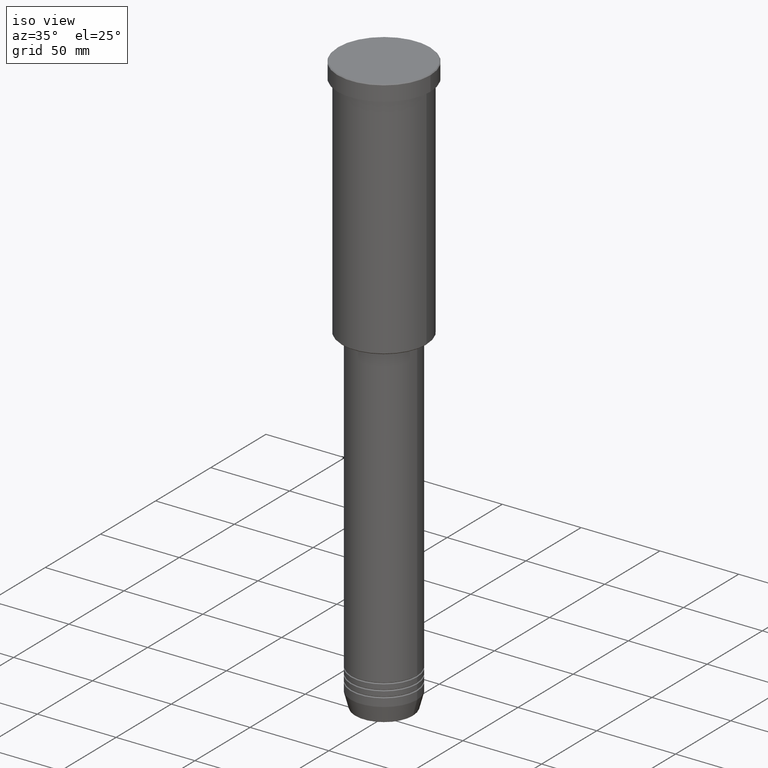
[diagram: clean part render]
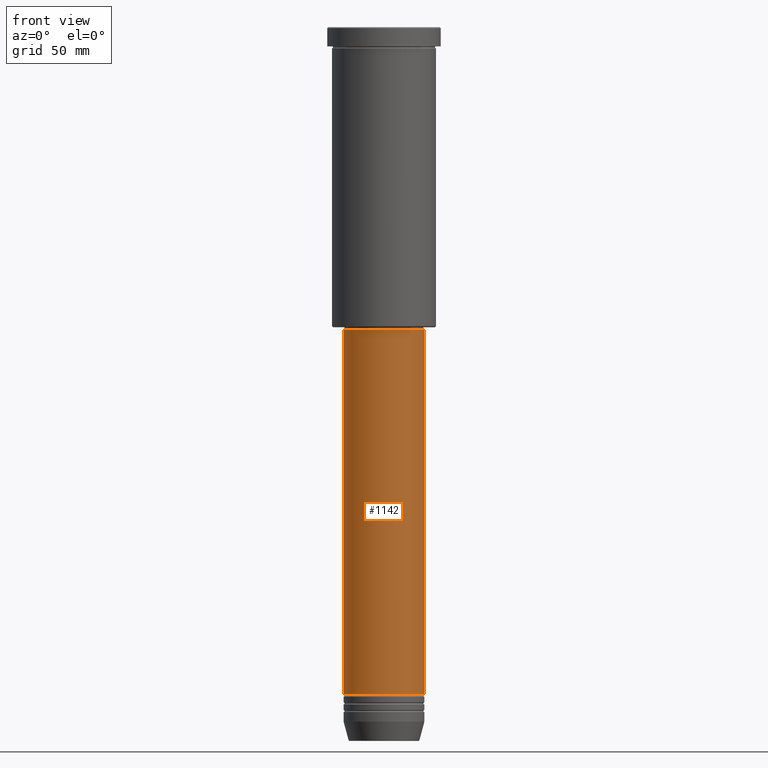
[diagram: tour spotlight — one face highlighted and labeled with its STEP entity id]
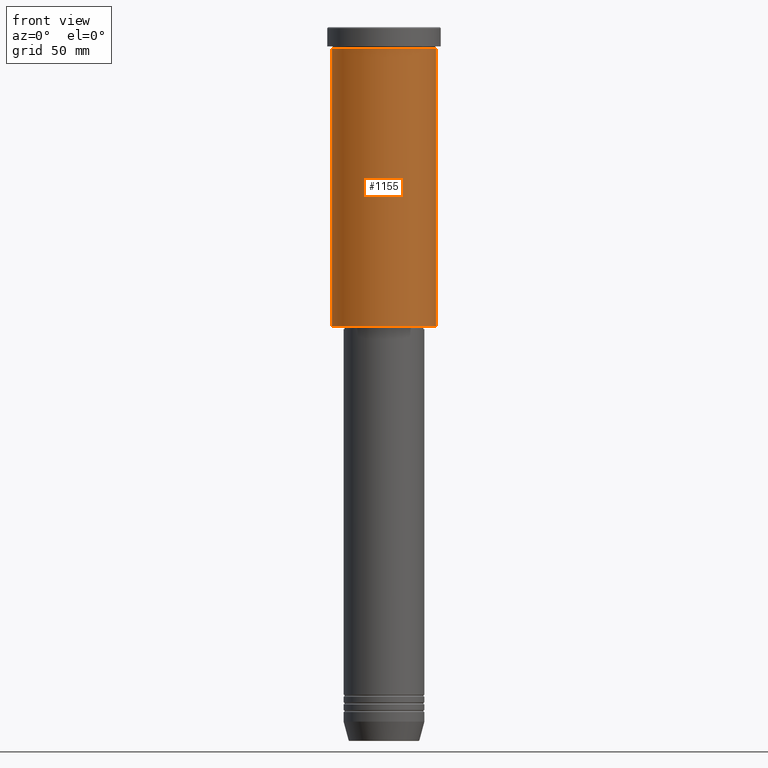
[diagram: tour spotlight — one face highlighted and labeled with its STEP entity id]
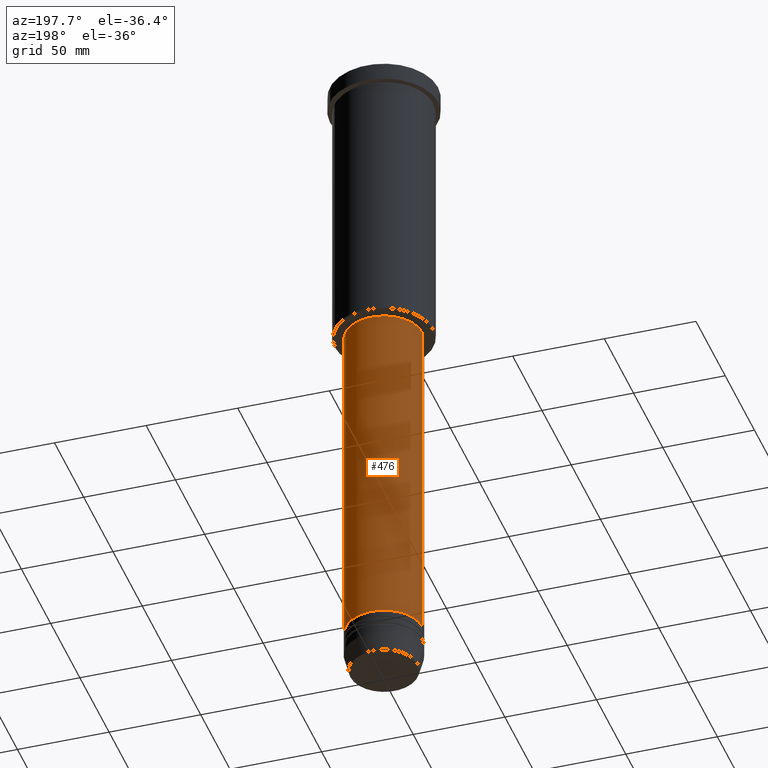
[diagram: tour spotlight — one face highlighted and labeled with its STEP entity id]
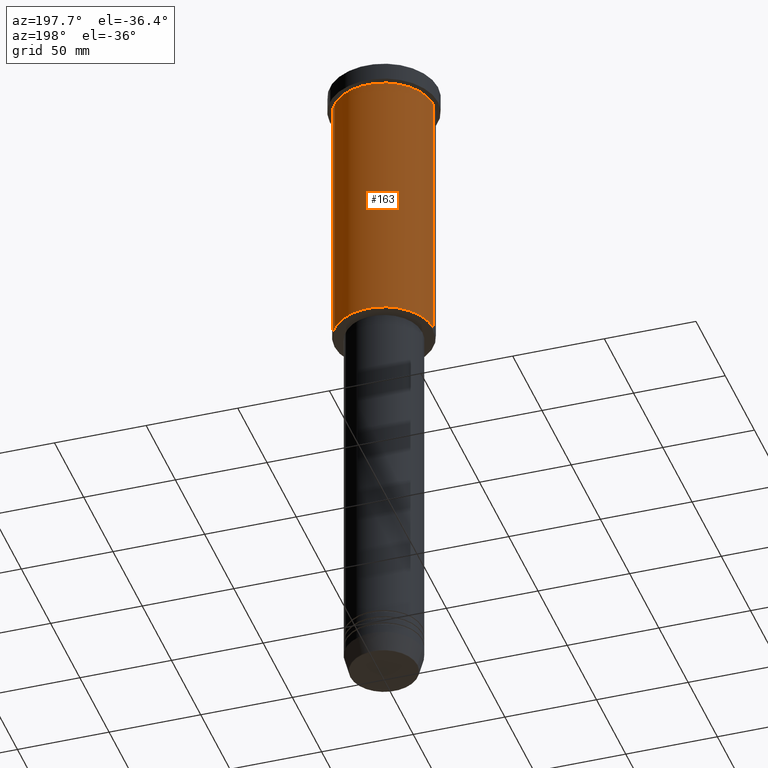
[diagram: tour spotlight — one face highlighted and labeled with its STEP entity id]
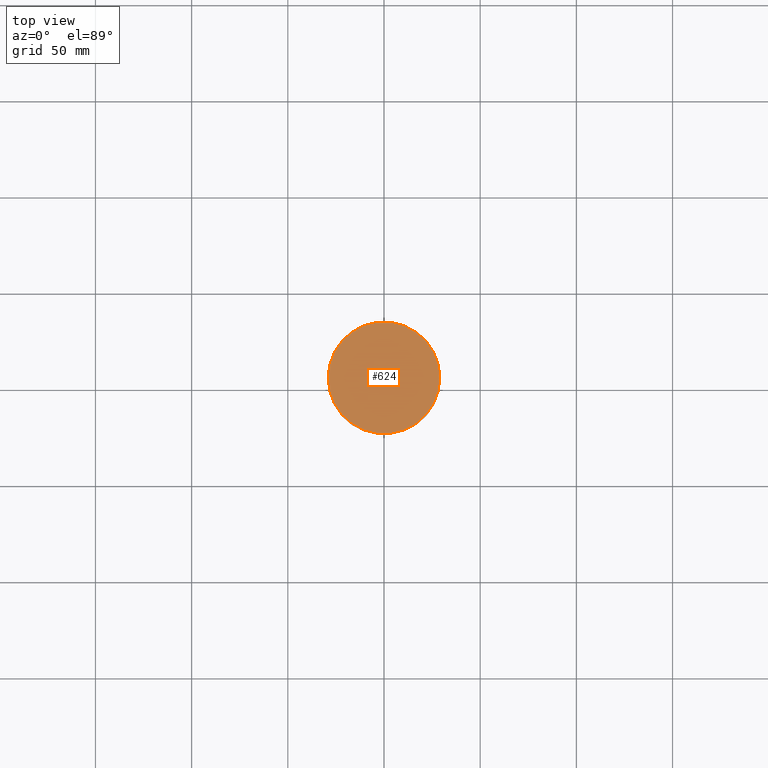
[diagram: tour spotlight — one face highlighted and labeled with its STEP entity id]
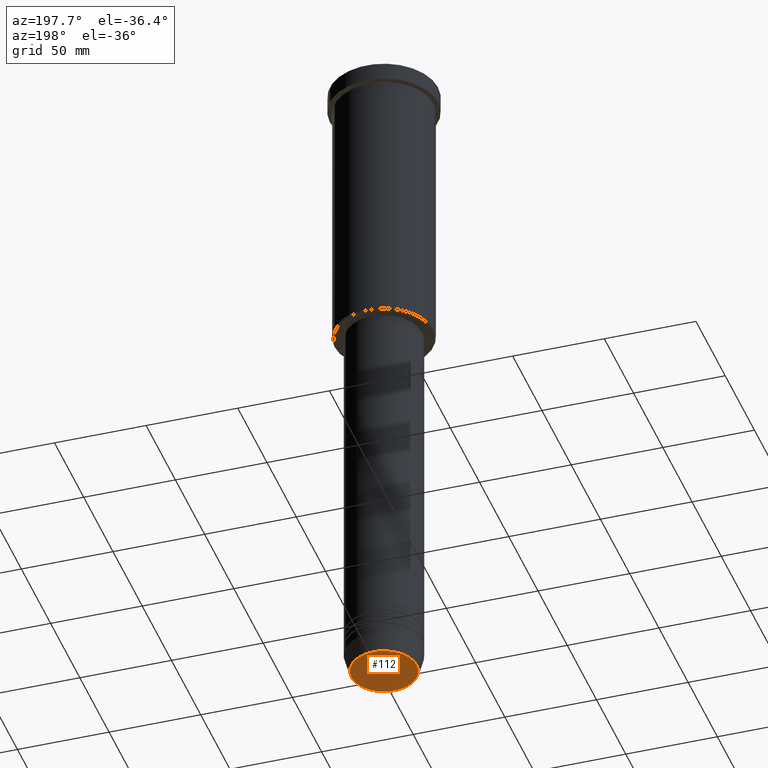
[diagram: tour spotlight — one face highlighted and labeled with its STEP entity id]
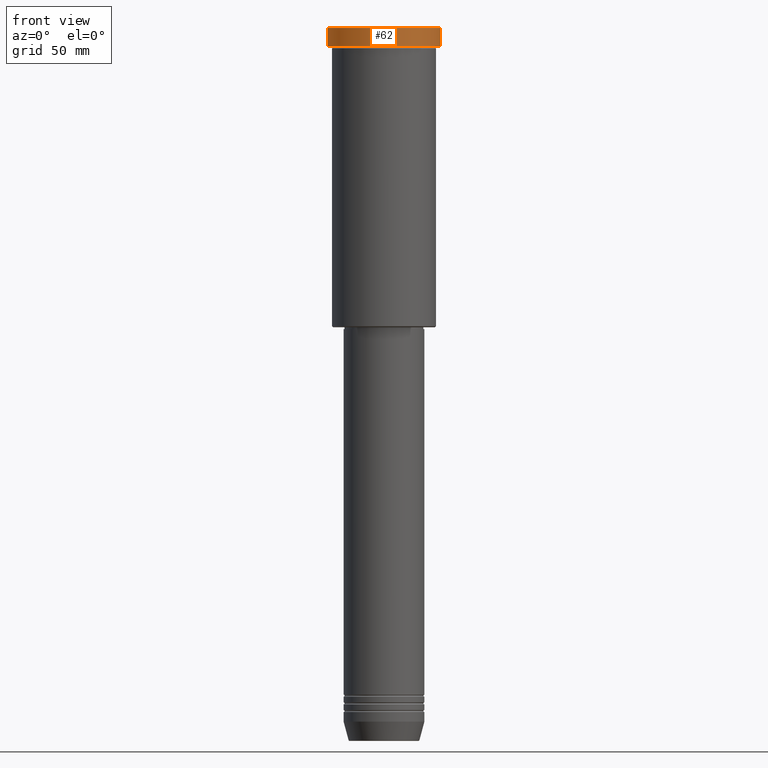
[diagram: tour spotlight — one face highlighted and labeled with its STEP entity id]
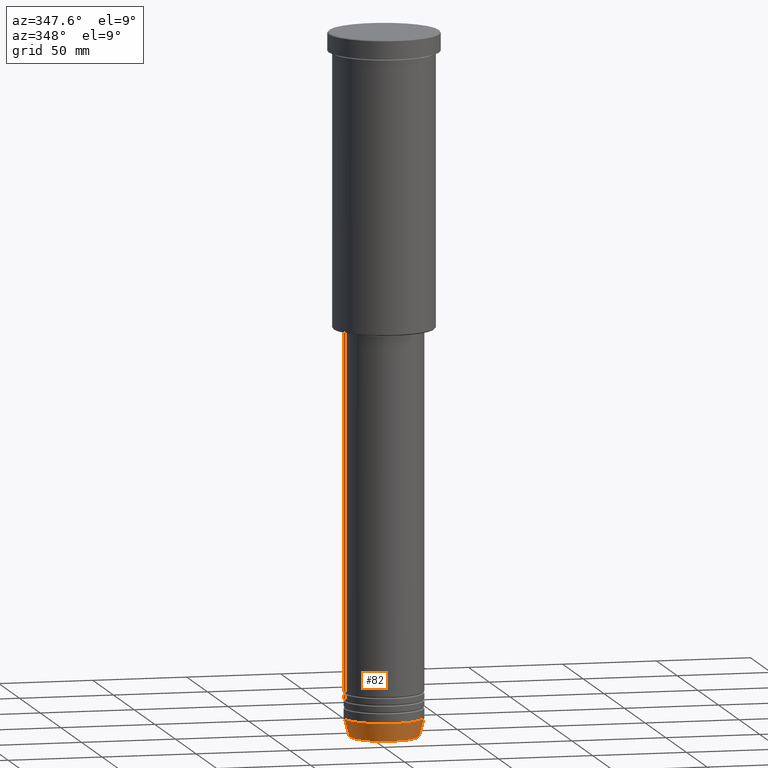
[diagram: tour spotlight — one face highlighted and labeled with its STEP entity id]
A machine part: a face-by-face anatomy tour. The part has 43 B-rep faces; the first image is the clean iso view, then the 8 largest visible faces are spotlighted one at a time (largest first), each with its STEP entity span.

Face 1 — front view, entity #1142. In plain terms, the highlighted cylindrical surface (partial cylindrical patch) has radius 21 mm, axis along (-0, -0, 1).
Definition (entity closure, byte-faithful):
#15 = DIRECTION ( 'NONE',  ( -0.000000000000000000, -0.000000000000000000, 1.000000000000000000 ) ) ;
#20 = CARTESIAN_POINT ( 'NONE',  ( -20.99999999999999645, 2.571758278209441267E-15, -156.9999999999999147 ) ) ;
#25 = CYLINDRICAL_SURFACE ( 'NONE', #558, 20.99999999999999645 ) ;
#57 = VERTEX_POINT ( 'NONE', #20 ) ;
#143 = CIRCLE ( 'NONE', #810, 20.99999999999999645 ) ;
#194 = DIRECTION ( 'NONE',  ( -0.000000000000000000, -0.000000000000000000, 1.000000000000000000 ) ) ;
#200 = DIRECTION ( 'NONE',  ( 1.000000000000000000, 0.000000000000000000, 0.000000000000000000 ) ) ;
#213 = DIRECTION ( 'NONE',  ( 1.000000000000000000, 0.000000000000000000, 0.000000000000000000 ) ) ;
#227 = CIRCLE ( 'NONE', #1119, 21.00000000000000000 ) ;
#255 = CARTESIAN_POINT ( 'NONE',  ( -20.99999999999999645, 2.571758278209441267E-15, 0.000000000000000000 ) ) ;
#291 = ORIENTED_EDGE ( 'NONE', *, *, #801, .T. ) ;
#301 = VECTOR ( 'NONE', #983, 1000.000000000000000 ) ;
#384 = EDGE_CURVE ( 'NONE', #1099, #57, #704, .T. ) ;
#468 = DIRECTION ( 'NONE',  ( 1.000000000000000000, 0.000000000000000000, 0.000000000000000000 ) ) ;
#481 = FACE_OUTER_BOUND ( 'NONE', #907, .T. ) ;
#525 = CARTESIAN_POINT ( 'NONE',  ( -21.00000000000000000, 2.571758278209441661E-15, -346.9999999999998863 ) ) ;
#549 = CARTESIAN_POINT ( 'NONE',  ( 20.99999999999999645, 0.000000000000000000, 0.000000000000000000 ) ) ;
#558 = AXIS2_PLACEMENT_3D ( 'NONE', #742, #194, #213 ) ;
#623 = ORIENTED_EDGE ( 'NONE', *, *, #1173, .T. ) ;
#648 = DIRECTION ( 'NONE',  ( -0.000000000000000000, -0.000000000000000000, 1.000000000000000000 ) ) ;
#672 = ORIENTED_EDGE ( 'NONE', *, *, #776, .F. ) ;
#704 = LINE ( 'NONE', #255, #301 ) ;
#742 = CARTESIAN_POINT ( 'NONE',  ( 0.000000000000000000, 0.000000000000000000, 0.000000000000000000 ) ) ;
#745 = LINE ( 'NONE', #549, #1156 ) ;
#776 = EDGE_CURVE ( 'NONE', #57, #867, #143, .T. ) ;
#801 = EDGE_CURVE ( 'NONE', #944, #867, #745, .T. ) ;
#810 = AXIS2_PLACEMENT_3D ( 'NONE', #1019, #648, #468 ) ;
#867 = VERTEX_POINT ( 'NONE', #955 ) ;
#893 = CARTESIAN_POINT ( 'NONE',  ( 21.00000000000000000, 0.000000000000000000, -346.9999999999998863 ) ) ;
#907 = EDGE_LOOP ( 'NONE', ( #986, #623, #291, #672 ) ) ;
#914 = DIRECTION ( 'NONE',  ( -0.000000000000000000, -0.000000000000000000, 1.000000000000000000 ) ) ;
#943 = CARTESIAN_POINT ( 'NONE',  ( 0.000000000000000000, 0.000000000000000000, -346.9999999999998863 ) ) ;
#944 = VERTEX_POINT ( 'NONE', #893 ) ;
#955 = CARTESIAN_POINT ( 'NONE',  ( 20.99999999999999645, 0.000000000000000000, -156.9999999999999147 ) ) ;
#983 = DIRECTION ( 'NONE',  ( -0.000000000000000000, -0.000000000000000000, 1.000000000000000000 ) ) ;
#986 = ORIENTED_EDGE ( 'NONE', *, *, #384, .F. ) ;
#1019 = CARTESIAN_POINT ( 'NONE',  ( 0.000000000000000000, 0.000000000000000000, -156.9999999999999147 ) ) ;
#1099 = VERTEX_POINT ( 'NONE', #525 ) ;
#1119 = AXIS2_PLACEMENT_3D ( 'NONE', #943, #15, #200 ) ;
#1142 = ADVANCED_FACE ( 'NONE', ( #481 ), #25, .T. ) ;
#1156 = VECTOR ( 'NONE', #914, 1000.000000000000000 ) ;
#1173 = EDGE_CURVE ( 'NONE', #1099, #944, #227, .T. ) ;

Face 2 — front view, entity #1155. In plain terms, the highlighted cylindrical surface (partial cylindrical patch) has radius 27 mm, axis along (-0, -0, 1).
Definition (entity closure, byte-faithful):
#36 = CARTESIAN_POINT ( 'NONE',  ( 0.000000000000000000, 0.000000000000000000, -10.99999999999999289 ) ) ;
#43 = CARTESIAN_POINT ( 'NONE',  ( -27.00000000000000355, 3.306546357697854128E-15, -10.99999999999999289 ) ) ;
#47 = DIRECTION ( 'NONE',  ( -0.000000000000000000, -0.000000000000000000, 1.000000000000000000 ) ) ;
#80 = VERTEX_POINT ( 'NONE', #469 ) ;
#89 = CIRCLE ( 'NONE', #182, 27.00000000000000355 ) ;
#106 = CARTESIAN_POINT ( 'NONE',  ( -27.00000000000000355, 3.306546357697854128E-15, -155.5000000000000000 ) ) ;
#110 = FACE_OUTER_BOUND ( 'NONE', #635, .T. ) ;
#165 = AXIS2_PLACEMENT_3D ( 'NONE', #1059, #1166, #723 ) ;
#182 = AXIS2_PLACEMENT_3D ( 'NONE', #36, #47, #402 ) ;
#189 = ORIENTED_EDGE ( 'NONE', *, *, #195, .T. ) ;
#195 = EDGE_CURVE ( 'NONE', #80, #455, #831, .T. ) ;
#270 = VERTEX_POINT ( 'NONE', #43 ) ;
#290 = CARTESIAN_POINT ( 'NONE',  ( 0.000000000000000000, 0.000000000000000000, 0.000000000000000000 ) ) ;
#296 = CYLINDRICAL_SURFACE ( 'NONE', #989, 27.00000000000000355 ) ;
#326 = DIRECTION ( 'NONE',  ( -0.000000000000000000, -0.000000000000000000, 1.000000000000000000 ) ) ;
#347 = EDGE_CURVE ( 'NONE', #270, #455, #89, .T. ) ;
#402 = DIRECTION ( 'NONE',  ( 1.000000000000000000, 0.000000000000000000, 0.000000000000000000 ) ) ;
#403 = DIRECTION ( 'NONE',  ( -0.000000000000000000, -0.000000000000000000, 1.000000000000000000 ) ) ;
#455 = VERTEX_POINT ( 'NONE', #686 ) ;
#469 = CARTESIAN_POINT ( 'NONE',  ( 27.00000000000000355, 0.000000000000000000, -155.5000000000000000 ) ) ;
#474 = DIRECTION ( 'NONE',  ( 1.000000000000000000, 0.000000000000000000, 0.000000000000000000 ) ) ;
#579 = EDGE_CURVE ( 'NONE', #815, #80, #790, .T. ) ;
#612 = CARTESIAN_POINT ( 'NONE',  ( -27.00000000000000355, 3.306546357697854128E-15, 0.000000000000000000 ) ) ;
#635 = EDGE_LOOP ( 'NONE', ( #990, #819, #189, #849 ) ) ;
#638 = VECTOR ( 'NONE', #805, 1000.000000000000000 ) ;
#686 = CARTESIAN_POINT ( 'NONE',  ( 27.00000000000000355, 0.000000000000000000, -10.99999999999999289 ) ) ;
#723 = DIRECTION ( 'NONE',  ( -1.000000000000000000, 0.000000000000000000, 0.000000000000000000 ) ) ;
#733 = VECTOR ( 'NONE', #326, 1000.000000000000000 ) ;
#790 = CIRCLE ( 'NONE', #165, 27.00000000000000355 ) ;
#794 = LINE ( 'NONE', #612, #638 ) ;
#805 = DIRECTION ( 'NONE',  ( -0.000000000000000000, -0.000000000000000000, 1.000000000000000000 ) ) ;
#815 = VERTEX_POINT ( 'NONE', #106 ) ;
#819 = ORIENTED_EDGE ( 'NONE', *, *, #579, .T. ) ;
#831 = LINE ( 'NONE', #862, #733 ) ;
#849 = ORIENTED_EDGE ( 'NONE', *, *, #347, .F. ) ;
#862 = CARTESIAN_POINT ( 'NONE',  ( 27.00000000000000355, 0.000000000000000000, 0.000000000000000000 ) ) ;
#989 = AXIS2_PLACEMENT_3D ( 'NONE', #290, #403, #474 ) ;
#990 = ORIENTED_EDGE ( 'NONE', *, *, #1017, .F. ) ;
#1017 = EDGE_CURVE ( 'NONE', #815, #270, #794, .T. ) ;
#1059 = CARTESIAN_POINT ( 'NONE',  ( 0.000000000000000000, 0.000000000000000000, -155.5000000000000000 ) ) ;
#1155 = ADVANCED_FACE ( 'NONE', ( #110 ), #296, .T. ) ;
#1166 = DIRECTION ( 'NONE',  ( -0.000000000000000000, -0.000000000000000000, 1.000000000000000000 ) ) ;

Face 3 — auxiliary view, entity #476. In plain terms, the highlighted cylindrical surface (partial cylindrical patch) has radius 21 mm, axis along (-0, -0, 1).
Definition (entity closure, byte-faithful):
#20 = CARTESIAN_POINT ( 'NONE',  ( -20.99999999999999645, 2.571758278209441267E-15, -156.9999999999999147 ) ) ;
#38 = EDGE_LOOP ( 'NONE', ( #45, #918, #441, #1069 ) ) ;
#45 = ORIENTED_EDGE ( 'NONE', *, *, #892, .T. ) ;
#46 = DIRECTION ( 'NONE',  ( -0.000000000000000000, -0.000000000000000000, 1.000000000000000000 ) ) ;
#57 = VERTEX_POINT ( 'NONE', #20 ) ;
#122 = CARTESIAN_POINT ( 'NONE',  ( 0.000000000000000000, 0.000000000000000000, -346.9999999999998863 ) ) ;
#205 = AXIS2_PLACEMENT_3D ( 'NONE', #760, #423, #219 ) ;
#219 = DIRECTION ( 'NONE',  ( 1.000000000000000000, 0.000000000000000000, 0.000000000000000000 ) ) ;
#255 = CARTESIAN_POINT ( 'NONE',  ( -20.99999999999999645, 2.571758278209441267E-15, 0.000000000000000000 ) ) ;
#301 = VECTOR ( 'NONE', #983, 1000.000000000000000 ) ;
#317 = CYLINDRICAL_SURFACE ( 'NONE', #205, 20.99999999999999645 ) ;
#384 = EDGE_CURVE ( 'NONE', #1099, #57, #704, .T. ) ;
#423 = DIRECTION ( 'NONE',  ( -0.000000000000000000, -0.000000000000000000, 1.000000000000000000 ) ) ;
#441 = ORIENTED_EDGE ( 'NONE', *, *, #798, .F. ) ;
#476 = ADVANCED_FACE ( 'NONE', ( #1125 ), #317, .T. ) ;
#478 = AXIS2_PLACEMENT_3D ( 'NONE', #1024, #929, #1013 ) ;
#525 = CARTESIAN_POINT ( 'NONE',  ( -21.00000000000000000, 2.571758278209441661E-15, -346.9999999999998863 ) ) ;
#549 = CARTESIAN_POINT ( 'NONE',  ( 20.99999999999999645, 0.000000000000000000, 0.000000000000000000 ) ) ;
#704 = LINE ( 'NONE', #255, #301 ) ;
#745 = LINE ( 'NONE', #549, #1156 ) ;
#760 = CARTESIAN_POINT ( 'NONE',  ( 0.000000000000000000, 0.000000000000000000, 0.000000000000000000 ) ) ;
#798 = EDGE_CURVE ( 'NONE', #867, #57, #1006, .T. ) ;
#801 = EDGE_CURVE ( 'NONE', #944, #867, #745, .T. ) ;
#867 = VERTEX_POINT ( 'NONE', #955 ) ;
#892 = EDGE_CURVE ( 'NONE', #944, #1099, #1179, .T. ) ;
#893 = CARTESIAN_POINT ( 'NONE',  ( 21.00000000000000000, 0.000000000000000000, -346.9999999999998863 ) ) ;
#909 = AXIS2_PLACEMENT_3D ( 'NONE', #122, #46, #1129 ) ;
#914 = DIRECTION ( 'NONE',  ( -0.000000000000000000, -0.000000000000000000, 1.000000000000000000 ) ) ;
#918 = ORIENTED_EDGE ( 'NONE', *, *, #384, .T. ) ;
#929 = DIRECTION ( 'NONE',  ( -0.000000000000000000, -0.000000000000000000, 1.000000000000000000 ) ) ;
#944 = VERTEX_POINT ( 'NONE', #893 ) ;
#955 = CARTESIAN_POINT ( 'NONE',  ( 20.99999999999999645, 0.000000000000000000, -156.9999999999999147 ) ) ;
#983 = DIRECTION ( 'NONE',  ( -0.000000000000000000, -0.000000000000000000, 1.000000000000000000 ) ) ;
#1006 = CIRCLE ( 'NONE', #478, 20.99999999999999645 ) ;
#1013 = DIRECTION ( 'NONE',  ( 1.000000000000000000, 0.000000000000000000, 0.000000000000000000 ) ) ;
#1024 = CARTESIAN_POINT ( 'NONE',  ( 0.000000000000000000, 0.000000000000000000, -156.9999999999999147 ) ) ;
#1069 = ORIENTED_EDGE ( 'NONE', *, *, #801, .F. ) ;
#1099 = VERTEX_POINT ( 'NONE', #525 ) ;
#1125 = FACE_OUTER_BOUND ( 'NONE', #38, .T. ) ;
#1129 = DIRECTION ( 'NONE',  ( 1.000000000000000000, 0.000000000000000000, 0.000000000000000000 ) ) ;
#1156 = VECTOR ( 'NONE', #914, 1000.000000000000000 ) ;
#1179 = CIRCLE ( 'NONE', #909, 21.00000000000000000 ) ;

Face 4 — auxiliary view, entity #163. In plain terms, the highlighted cylindrical surface (partial cylindrical patch) has radius 27 mm, axis along (-0, -0, 1).
Definition (entity closure, byte-faithful):
#43 = CARTESIAN_POINT ( 'NONE',  ( -27.00000000000000355, 3.306546357697854128E-15, -10.99999999999999289 ) ) ;
#61 = ORIENTED_EDGE ( 'NONE', *, *, #195, .F. ) ;
#80 = VERTEX_POINT ( 'NONE', #469 ) ;
#106 = CARTESIAN_POINT ( 'NONE',  ( -27.00000000000000355, 3.306546357697854128E-15, -155.5000000000000000 ) ) ;
#163 = ADVANCED_FACE ( 'NONE', ( #645 ), #1010, .T. ) ;
#186 = CIRCLE ( 'NONE', #577, 27.00000000000000355 ) ;
#195 = EDGE_CURVE ( 'NONE', #80, #455, #831, .T. ) ;
#249 = EDGE_CURVE ( 'NONE', #455, #270, #393, .T. ) ;
#270 = VERTEX_POINT ( 'NONE', #43 ) ;
#326 = DIRECTION ( 'NONE',  ( -0.000000000000000000, -0.000000000000000000, 1.000000000000000000 ) ) ;
#331 = CARTESIAN_POINT ( 'NONE',  ( 0.000000000000000000, 0.000000000000000000, -10.99999999999999289 ) ) ;
#354 = DIRECTION ( 'NONE',  ( -0.000000000000000000, -0.000000000000000000, 1.000000000000000000 ) ) ;
#393 = CIRCLE ( 'NONE', #595, 27.00000000000000355 ) ;
#455 = VERTEX_POINT ( 'NONE', #686 ) ;
#458 = ORIENTED_EDGE ( 'NONE', *, *, #1114, .T. ) ;
#469 = CARTESIAN_POINT ( 'NONE',  ( 27.00000000000000355, 0.000000000000000000, -155.5000000000000000 ) ) ;
#479 = DIRECTION ( 'NONE',  ( 1.000000000000000000, 0.000000000000000000, 0.000000000000000000 ) ) ;
#541 = EDGE_LOOP ( 'NONE', ( #458, #714, #1027, #61 ) ) ;
#577 = AXIS2_PLACEMENT_3D ( 'NONE', #1085, #354, #1079 ) ;
#595 = AXIS2_PLACEMENT_3D ( 'NONE', #331, #1034, #479 ) ;
#612 = CARTESIAN_POINT ( 'NONE',  ( -27.00000000000000355, 3.306546357697854128E-15, 0.000000000000000000 ) ) ;
#632 = AXIS2_PLACEMENT_3D ( 'NONE', #725, #1089, #634 ) ;
#634 = DIRECTION ( 'NONE',  ( 1.000000000000000000, 0.000000000000000000, 0.000000000000000000 ) ) ;
#638 = VECTOR ( 'NONE', #805, 1000.000000000000000 ) ;
#645 = FACE_OUTER_BOUND ( 'NONE', #541, .T. ) ;
#686 = CARTESIAN_POINT ( 'NONE',  ( 27.00000000000000355, 0.000000000000000000, -10.99999999999999289 ) ) ;
#714 = ORIENTED_EDGE ( 'NONE', *, *, #1017, .T. ) ;
#725 = CARTESIAN_POINT ( 'NONE',  ( 0.000000000000000000, 0.000000000000000000, 0.000000000000000000 ) ) ;
#733 = VECTOR ( 'NONE', #326, 1000.000000000000000 ) ;
#794 = LINE ( 'NONE', #612, #638 ) ;
#805 = DIRECTION ( 'NONE',  ( -0.000000000000000000, -0.000000000000000000, 1.000000000000000000 ) ) ;
#815 = VERTEX_POINT ( 'NONE', #106 ) ;
#831 = LINE ( 'NONE', #862, #733 ) ;
#862 = CARTESIAN_POINT ( 'NONE',  ( 27.00000000000000355, 0.000000000000000000, 0.000000000000000000 ) ) ;
#1010 = CYLINDRICAL_SURFACE ( 'NONE', #632, 27.00000000000000355 ) ;
#1017 = EDGE_CURVE ( 'NONE', #815, #270, #794, .T. ) ;
#1027 = ORIENTED_EDGE ( 'NONE', *, *, #249, .F. ) ;
#1034 = DIRECTION ( 'NONE',  ( -0.000000000000000000, -0.000000000000000000, 1.000000000000000000 ) ) ;
#1079 = DIRECTION ( 'NONE',  ( -1.000000000000000000, 0.000000000000000000, 0.000000000000000000 ) ) ;
#1085 = CARTESIAN_POINT ( 'NONE',  ( 0.000000000000000000, 0.000000000000000000, -155.5000000000000000 ) ) ;
#1089 = DIRECTION ( 'NONE',  ( -0.000000000000000000, -0.000000000000000000, 1.000000000000000000 ) ) ;
#1114 = EDGE_CURVE ( 'NONE', #80, #815, #186, .T. ) ;

Face 5 — top view, entity #624. In plain terms, the highlighted planar face has unit normal (0, -0, 1).
Definition (entity closure, byte-faithful):
#78 = FACE_OUTER_BOUND ( 'NONE', #791, .T. ) ;
#140 = VERTEX_POINT ( 'NONE', #731 ) ;
#180 = DIRECTION ( 'NONE',  ( 1.000000000000000000, 0.000000000000000000, 0.000000000000000000 ) ) ;
#210 = EDGE_CURVE ( 'NONE', #140, #836, #336, .T. ) ;
#226 = CIRCLE ( 'NONE', #377, 29.00000000000002487 ) ;
#231 = ORIENTED_EDGE ( 'NONE', *, *, #1131, .T. ) ;
#336 = CIRCLE ( 'NONE', #636, 29.00000000000002487 ) ;
#352 = CARTESIAN_POINT ( 'NONE',  ( 0.000000000000000000, 0.000000000000000000, 0.000000000000000000 ) ) ;
#357 = AXIS2_PLACEMENT_3D ( 'NONE', #352, #883, #1074 ) ;
#377 = AXIS2_PLACEMENT_3D ( 'NONE', #808, #629, #180 ) ;
#406 = DIRECTION ( 'NONE',  ( -0.000000000000000000, -0.000000000000000000, 1.000000000000000000 ) ) ;
#410 = CARTESIAN_POINT ( 'NONE',  ( 0.000000000000000000, 0.000000000000000000, 0.000000000000000000 ) ) ;
#624 = ADVANCED_FACE ( 'NONE', ( #78 ), #800, .T. ) ;
#629 = DIRECTION ( 'NONE',  ( -0.000000000000000000, -0.000000000000000000, 1.000000000000000000 ) ) ;
#636 = AXIS2_PLACEMENT_3D ( 'NONE', #410, #406, #687 ) ;
#687 = DIRECTION ( 'NONE',  ( 1.000000000000000000, 0.000000000000000000, 0.000000000000000000 ) ) ;
#731 = CARTESIAN_POINT ( 'NONE',  ( -29.00000000000002487, 0.000000000000000000, 0.000000000000000000 ) ) ;
#791 = EDGE_LOOP ( 'NONE', ( #1007, #231 ) ) ;
#800 = PLANE ( 'NONE',  #357 ) ;
#808 = CARTESIAN_POINT ( 'NONE',  ( 0.000000000000000000, 0.000000000000000000, 0.000000000000000000 ) ) ;
#817 = CARTESIAN_POINT ( 'NONE',  ( 29.00000000000002487, 3.582091887506009394E-15, 0.000000000000000000 ) ) ;
#836 = VERTEX_POINT ( 'NONE', #817 ) ;
#883 = DIRECTION ( 'NONE',  ( 0.000000000000000000, -0.000000000000000000, 1.000000000000000000 ) ) ;
#1007 = ORIENTED_EDGE ( 'NONE', *, *, #210, .T. ) ;
#1074 = DIRECTION ( 'NONE',  ( 1.000000000000000000, 0.000000000000000000, 0.000000000000000000 ) ) ;
#1131 = EDGE_CURVE ( 'NONE', #836, #140, #226, .T. ) ;

Face 6 — auxiliary view, entity #112. In plain terms, the highlighted planar face has unit normal (0, -0, 1).
Definition (entity closure, byte-faithful):
#1 = DIRECTION ( 'NONE',  ( 0.000000000000000000, -0.000000000000000000, 1.000000000000000000 ) ) ;
#13 = FACE_OUTER_BOUND ( 'NONE', #161, .T. ) ;
#64 = AXIS2_PLACEMENT_3D ( 'NONE', #289, #1, #563 ) ;
#104 = DIRECTION ( 'NONE',  ( 1.000000000000000000, 0.000000000000000000, 0.000000000000000000 ) ) ;
#112 = ADVANCED_FACE ( 'NONE', ( #13 ), #746, .F. ) ;
#161 = EDGE_LOOP ( 'NONE', ( #685, #1049 ) ) ;
#215 = DIRECTION ( 'NONE',  ( 1.000000000000000000, 0.000000000000000000, 0.000000000000000000 ) ) ;
#289 = CARTESIAN_POINT ( 'NONE',  ( 0.000000000000000000, 0.000000000000000000, -371.0000000000000000 ) ) ;
#298 = EDGE_CURVE ( 'NONE', #533, #894, #573, .T. ) ;
#453 = CIRCLE ( 'NONE', #792, 17.93684458169929030 ) ;
#533 = VERTEX_POINT ( 'NONE', #960 ) ;
#563 = DIRECTION ( 'NONE',  ( 1.000000000000000000, 0.000000000000000000, 0.000000000000000000 ) ) ;
#573 = CIRCLE ( 'NONE', #906, 17.93684458169929030 ) ;
#685 = ORIENTED_EDGE ( 'NONE', *, *, #1029, .T. ) ;
#707 = CARTESIAN_POINT ( 'NONE',  ( 0.000000000000000000, 0.000000000000000000, -371.0000000000000000 ) ) ;
#746 = PLANE ( 'NONE',  #64 ) ;
#792 = AXIS2_PLACEMENT_3D ( 'NONE', #707, #1070, #104 ) ;
#844 = CARTESIAN_POINT ( 'NONE',  ( 17.93684458169929030, 0.000000000000000000, -371.0000000000000000 ) ) ;
#894 = VERTEX_POINT ( 'NONE', #844 ) ;
#906 = AXIS2_PLACEMENT_3D ( 'NONE', #1140, #1030, #215 ) ;
#960 = CARTESIAN_POINT ( 'NONE',  ( -17.93684458169929030, 2.226202879662625134E-15, -371.0000000000000000 ) ) ;
#1029 = EDGE_CURVE ( 'NONE', #894, #533, #453, .T. ) ;
#1030 = DIRECTION ( 'NONE',  ( 0.000000000000000000, 0.000000000000000000, -1.000000000000000000 ) ) ;
#1049 = ORIENTED_EDGE ( 'NONE', *, *, #298, .T. ) ;
#1070 = DIRECTION ( 'NONE',  ( 0.000000000000000000, 0.000000000000000000, -1.000000000000000000 ) ) ;
#1140 = CARTESIAN_POINT ( 'NONE',  ( 0.000000000000000000, 0.000000000000000000, -371.0000000000000000 ) ) ;

Face 7 — front view, entity #62. In plain terms, the highlighted cylindrical surface (partial cylindrical patch) has radius 29.5 mm, axis along (-0, -0, 1).
Definition (entity closure, byte-faithful):
#19 = CARTESIAN_POINT ( 'NONE',  ( -29.50000000000000000, 3.612708057484691604E-15, -0.5000000000000004441 ) ) ;
#50 = ORIENTED_EDGE ( 'NONE', *, *, #730, .T. ) ;
#62 = ADVANCED_FACE ( 'NONE', ( #654 ), #187, .T. ) ;
#76 = VERTEX_POINT ( 'NONE', #814 ) ;
#101 = DIRECTION ( 'NONE',  ( 1.000000000000000000, 0.000000000000000000, 0.000000000000000000 ) ) ;
#187 = CYLINDRICAL_SURFACE ( 'NONE', #554, 29.50000000000000000 ) ;
#206 = CARTESIAN_POINT ( 'NONE',  ( 0.000000000000000000, 0.000000000000000000, 0.000000000000000000 ) ) ;
#244 = VECTOR ( 'NONE', #602, 1000.000000000000000 ) ;
#284 = CARTESIAN_POINT ( 'NONE',  ( 29.50000000000000000, 0.000000000000000000, -9.999999999999992895 ) ) ;
#307 = DIRECTION ( 'NONE',  ( 0.000000000000000000, 0.000000000000000000, -1.000000000000000000 ) ) ;
#370 = CARTESIAN_POINT ( 'NONE',  ( 0.000000000000000000, 0.000000000000000000, -0.5000000000000004441 ) ) ;
#390 = EDGE_LOOP ( 'NONE', ( #953, #50, #517, #757 ) ) ;
#419 = LINE ( 'NONE', #974, #553 ) ;
#457 = DIRECTION ( 'NONE',  ( -0.000000000000000000, -0.000000000000000000, 1.000000000000000000 ) ) ;
#496 = LINE ( 'NONE', #860, #244 ) ;
#517 = ORIENTED_EDGE ( 'NONE', *, *, #548, .T. ) ;
#548 = EDGE_CURVE ( 'NONE', #777, #76, #496, .T. ) ;
#553 = VECTOR ( 'NONE', #781, 1000.000000000000000 ) ;
#554 = AXIS2_PLACEMENT_3D ( 'NONE', #206, #457, #101 ) ;
#569 = EDGE_CURVE ( 'NONE', #865, #796, #419, .T. ) ;
#585 = CARTESIAN_POINT ( 'NONE',  ( -29.50000000000000000, 3.612708057484691604E-15, -9.999999999999992895 ) ) ;
#600 = CARTESIAN_POINT ( 'NONE',  ( 0.000000000000000000, 0.000000000000000000, -9.999999999999992895 ) ) ;
#602 = DIRECTION ( 'NONE',  ( -0.000000000000000000, -0.000000000000000000, 1.000000000000000000 ) ) ;
#637 = AXIS2_PLACEMENT_3D ( 'NONE', #370, #307, #837 ) ;
#654 = FACE_OUTER_BOUND ( 'NONE', #390, .T. ) ;
#675 = EDGE_CURVE ( 'NONE', #76, #796, #927, .T. ) ;
#730 = EDGE_CURVE ( 'NONE', #865, #777, #1057, .T. ) ;
#757 = ORIENTED_EDGE ( 'NONE', *, *, #675, .T. ) ;
#777 = VERTEX_POINT ( 'NONE', #284 ) ;
#781 = DIRECTION ( 'NONE',  ( -0.000000000000000000, -0.000000000000000000, 1.000000000000000000 ) ) ;
#796 = VERTEX_POINT ( 'NONE', #19 ) ;
#814 = CARTESIAN_POINT ( 'NONE',  ( 29.50000000000000000, 0.000000000000000000, -0.5000000000000004441 ) ) ;
#837 = DIRECTION ( 'NONE',  ( 1.000000000000000000, 0.000000000000000000, 0.000000000000000000 ) ) ;
#860 = CARTESIAN_POINT ( 'NONE',  ( 29.50000000000000000, 0.000000000000000000, 0.000000000000000000 ) ) ;
#861 = AXIS2_PLACEMENT_3D ( 'NONE', #600, #874, #1153 ) ;
#865 = VERTEX_POINT ( 'NONE', #585 ) ;
#874 = DIRECTION ( 'NONE',  ( -0.000000000000000000, -0.000000000000000000, 1.000000000000000000 ) ) ;
#927 = CIRCLE ( 'NONE', #637, 29.50000000000000000 ) ;
#953 = ORIENTED_EDGE ( 'NONE', *, *, #569, .F. ) ;
#974 = CARTESIAN_POINT ( 'NONE',  ( -29.50000000000000000, 3.612708057484691604E-15, 0.000000000000000000 ) ) ;
#1057 = CIRCLE ( 'NONE', #861, 29.50000000000000000 ) ;
#1153 = DIRECTION ( 'NONE',  ( 1.000000000000000000, 0.000000000000000000, 0.000000000000000000 ) ) ;

Face 8 — auxiliary view, entity #82. In plain terms, the highlighted conical surface has half-angle 15 deg.
Definition (entity closure, byte-faithful):
#4 = CARTESIAN_POINT ( 'NONE',  ( -21.00000000000000000, 2.571758278209441661E-15, -361.0000000000000000 ) ) ;
#22 = ORIENTED_EDGE ( 'NONE', *, *, #276, .F. ) ;
#56 = DIRECTION ( 'NONE',  ( 1.000000000000000000, 0.000000000000000000, 0.000000000000000000 ) ) ;
#82 = ADVANCED_FACE ( 'NONE', ( #1108 ), #236, .T. ) ;
#95 = CARTESIAN_POINT ( 'NONE',  ( 0.000000000000000000, 0.000000000000000000, -370.6294095225512706 ) ) ;
#103 = VERTEX_POINT ( 'NONE', #557 ) ;
#127 = VECTOR ( 'NONE', #138, 1000.000000000000114 ) ;
#131 = DIRECTION ( 'NONE',  ( -0.000000000000000000, -0.000000000000000000, 1.000000000000000000 ) ) ;
#138 = DIRECTION ( 'NONE',  ( 0.2588190451025211836, 0.000000000000000000, 0.9659258262890680902 ) ) ;
#162 = ORIENTED_EDGE ( 'NONE', *, *, #545, .T. ) ;
#172 = VERTEX_POINT ( 'NONE', #279 ) ;
#199 = DIRECTION ( 'NONE',  ( -0.000000000000000000, -0.000000000000000000, 1.000000000000000000 ) ) ;
#211 = DIRECTION ( 'NONE',  ( -0.000000000000000000, -0.000000000000000000, 1.000000000000000000 ) ) ;
#233 = LINE ( 'NONE', #586, #127 ) ;
#236 = CONICAL_SURFACE ( 'NONE', #631, 21.00000000000000000, 0.2617993877991499074 ) ;
#246 = VECTOR ( 'NONE', #812, 1000.000000000000114 ) ;
#276 = EDGE_CURVE ( 'NONE', #891, #172, #885, .T. ) ;
#279 = CARTESIAN_POINT ( 'NONE',  ( 21.00000000000000000, 0.000000000000000000, -361.0000000000000000 ) ) ;
#309 = EDGE_LOOP ( 'NONE', ( #841, #705, #162, #22 ) ) ;
#460 = DIRECTION ( 'NONE',  ( 1.000000000000000000, 0.000000000000000000, 0.000000000000000000 ) ) ;
#487 = VERTEX_POINT ( 'NONE', #581 ) ;
#497 = CARTESIAN_POINT ( 'NONE',  ( 0.000000000000000000, 0.000000000000000000, -361.0000000000000000 ) ) ;
#520 = CIRCLE ( 'NONE', #1023, 18.41980749484383750 ) ;
#545 = EDGE_CURVE ( 'NONE', #487, #172, #233, .T. ) ;
#557 = CARTESIAN_POINT ( 'NONE',  ( -18.41980749484383750, 2.413767053578267458E-15, -370.6294095225512706 ) ) ;
#581 = CARTESIAN_POINT ( 'NONE',  ( 18.41980749484383750, 0.000000000000000000, -370.6294095225512706 ) ) ;
#586 = CARTESIAN_POINT ( 'NONE',  ( 21.00000000000000000, 0.000000000000000000, -361.0000000000000000 ) ) ;
#631 = AXIS2_PLACEMENT_3D ( 'NONE', #1020, #199, #460 ) ;
#653 = DIRECTION ( 'NONE',  ( 1.000000000000000000, 0.000000000000000000, 0.000000000000000000 ) ) ;
#695 = AXIS2_PLACEMENT_3D ( 'NONE', #497, #131, #56 ) ;
#705 = ORIENTED_EDGE ( 'NONE', *, *, #830, .T. ) ;
#812 = DIRECTION ( 'NONE',  ( -0.2588190451025211836, 3.169619151431770488E-17, 0.9659258262890680902 ) ) ;
#827 = LINE ( 'NONE', #4, #246 ) ;
#830 = EDGE_CURVE ( 'NONE', #103, #487, #520, .T. ) ;
#841 = ORIENTED_EDGE ( 'NONE', *, *, #1035, .F. ) ;
#885 = CIRCLE ( 'NONE', #695, 21.00000000000000000 ) ;
#891 = VERTEX_POINT ( 'NONE', #939 ) ;
#939 = CARTESIAN_POINT ( 'NONE',  ( -21.00000000000000000, 2.571758278209441661E-15, -361.0000000000000000 ) ) ;
#1020 = CARTESIAN_POINT ( 'NONE',  ( 0.000000000000000000, 0.000000000000000000, -361.0000000000000000 ) ) ;
#1023 = AXIS2_PLACEMENT_3D ( 'NONE', #95, #211, #653 ) ;
#1035 = EDGE_CURVE ( 'NONE', #103, #891, #827, .T. ) ;
#1108 = FACE_OUTER_BOUND ( 'NONE', #309, .T. ) ;